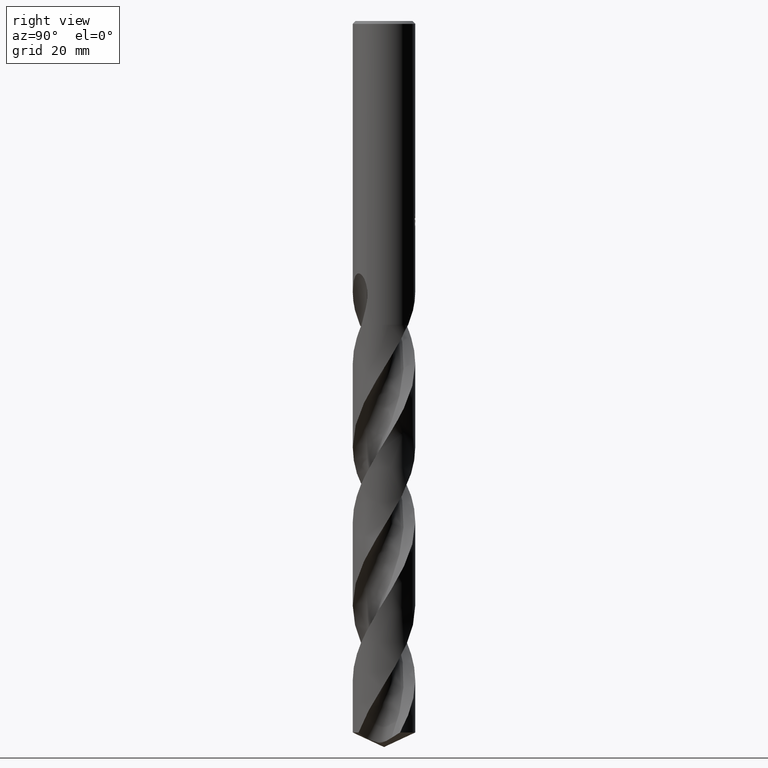
[diagram: clean part render]
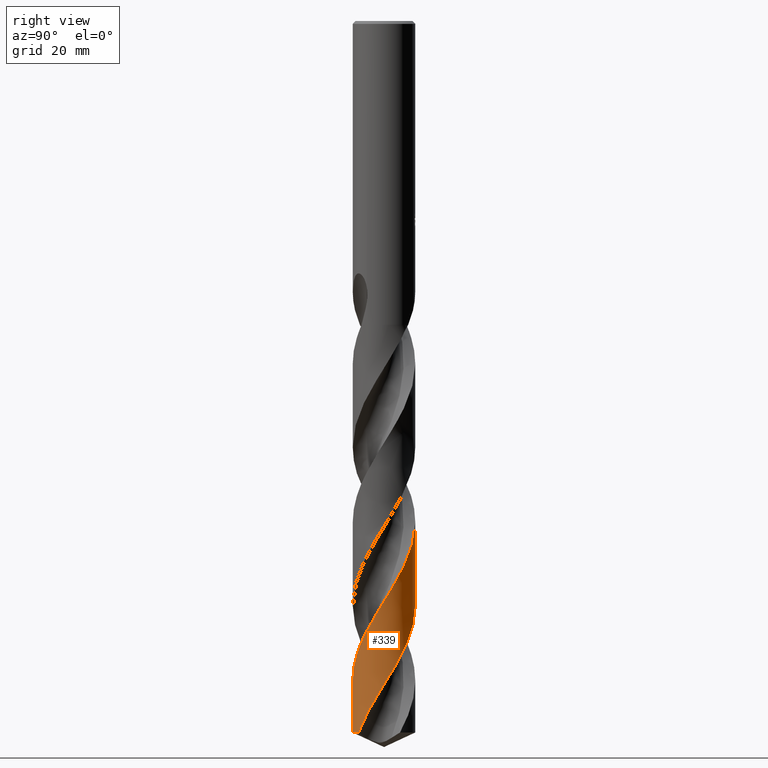
[diagram: same view with one face highlighted and labeled with its STEP entity id]
A machine part, right view. The second image highlights one B-rep face of the part: STEP entity #339.
In plain terms, the highlighted conical surface has half-angle 0 deg.
Its self-contained STEP definition (entity closure, byte-faithful):
#339=ADVANCED_FACE('',(#823),#824,.T.);
#349=EDGE_CURVE('',#655,#509,#835,.T.);
#411=EDGE_CURVE('',#699,#669,#900,.T.);
#509=VERTEX_POINT('',#1010);
#529=EDGE_CURVE('',#655,#669,#1032,.T.);
#531=EDGE_CURVE('',#537,#509,#1034,.T.);
#537=VERTEX_POINT('',#1040);
#559=EDGE_CURVE('',#537,#699,#1062,.T.);
#655=VERTEX_POINT('',#1168);
#669=VERTEX_POINT('',#1183);
#699=VERTEX_POINT('',#1215);
#823=FACE_OUTER_BOUND('',#1927,.T.);
#824=CONICAL_SURFACE('',#1928,6.49995,1.17967652960211E-006);
#835=LINE('',#2092,#2093);
#900=LINE('',#4105,#4106);
#1010=CARTESIAN_POINT('',(1.29228984185454E-014,6.49996885319632,-121.566166142724));
#1032=B_SPLINE_CURVE_WITH_KNOTS('',3,(#5838,#5839,#5840,#5841,#5842,#5843,#5844,#5845,#5846,#5847,#5848,#5849,#5850,#5851,#5852,#5853,#5854,#5855,#5856,#5857,#5858,#5859,#5860,#5861,#5862,#5863,#5864,#5865,#5866,#5867,#5868,#5869,#5870,#5871,#5872,#5873,#5874,#5875,#5876,#5877,#5878,#5879,#5880,#5881,#5882,#5883,#5884,#5885,#5886,#5887,#5888,#5889,#5890,#5891,#5892,#5893,#5894,#5895,#5896,#5897,#5898,#5899,#5900,#5901,#5902,#5903,#5904,#5905,#5906,#5907,#5908,#5909,#5910,#5911,#5912,#5913,#5914,#5915,#5916,#5917,#5918,#5919,#5920,#5921,#5922,#5923,#5924,#5925,#5926,#5927,#5928,#5929,#5930,#5931,#5932,#5933,#5934,#5935,#5936,#5937,#5938,#5939,#5940,#5941,#5942,#5943,#5944,#5945,#5946,#5947,#5948,#5949,#5950,#5951,#5952,#5953,#5954,#5955,#5956,#5957,#5958,#5959,#5960,#5961,#5962,#5963,#5964,#5965,#5966,#5967,#5968,#5969,#5970,#5971,#5972,#5973,#5974,#5975,#5976,#5977,#5978,#5979,#5980,#5981,#5982,#5983,#5984,#5985,#5986,#5987,#5988,#5989),.UNSPECIFIED.,.F.,.F.,(4,2,2,2,2,2,2,2,2,2,2,2,2,2,2,2,2,2,2,2,2,2,2,2,2,2,2,2,2,2,2,2,2,2,2,2,2,2,2,2,2,2,2,2,2,2,2,2,2,2,2,2,2,2,2,2,2,2,2,2,2,2,2,2,2,2,2,2,2,2,2,2,2,2,2,4),(0.0,0.3307925086736,0.473888265157433,0.52512629964502,0.560457225963903,0.621862463233159,1.41913168015053,1.65246397846595,1.79168776002357,1.91557137974385,2.07175984315985,2.38634997119177,2.44822355523765,3.37165144533369,3.90930528654019,4.39123339969616,4.63767424028621,5.24841387285559,6.83965311773962,9.14841746509517,11.3629098835279,13.5816164490376,15.7767259159485,15.9731011873861,17.5408142781743,19.7699929436128,21.9632010869519,22.3835700255137,24.0166476760406,26.2427579856608,28.4443587306659,28.5385548169038,31.4055500516683,31.8349769998907,33.4418826717555,35.6688278524919,37.8680056710739,38.0612859564526,41.0267214663211,41.222575721784,44.2258913980158,44.3209201483288,47.2289635120674,47.6408584377628,49.2552715744945,51.4806648887031,53.6798648195001,53.7755663756836,56.6604859081455,57.0814325433631,58.6654123026778,60.8916862848195,63.0879964492822,63.2855419634287,66.2566172763016,66.4511795422095,69.3924080326355,69.5920199332261,72.5349898493644,72.9333096813411,75.2384508161538,76.327419828701,78.3979423219118,79.4895163742067,81.6101539629526,82.5884760301213,84.431084584945,85.2476467011233,85.341190891026,88.2386840459353,88.8127686645703,90.9801678138458,92.6122823869317,93.8404367791828,95.683408709614,97.5285878149215),.UNSPECIFIED.);
#1034=B_SPLINE_CURVE_WITH_KNOTS('',3,(#5992,#5993,#5994,#5995,#5996,#5997,#5998,#5999,#6000,#6001,#6002,#6003,#6004,#6005,#6006,#6007,#6008,#6009,#6010,#6011,#6012,#6013,#6014,#6015,#6016,#6017,#6018,#6019,#6020,#6021,#6022,#6023,#6024,#6025,#6026,#6027,#6028,#6029,#6030,#6031,#6032,#6033,#6034,#6035,#6036,#6037,#6038,#6039,#6040,#6041,#6042,#6043,#6044,#6045,#6046,#6047,#6048,#6049,#6050,#6051,#6052,#6053,#6054,#6055,#6056,#6057,#6058,#6059,#6060,#6061,#6062,#6063,#6064,#6065,#6066,#6067,#6068,#6069,#6070,#6071,#6072,#6073,#6074,#6075,#6076,#6077,#6078,#6079,#6080,#6081,#6082,#6083,#6084,#6085,#6086,#6087,#6088,#6089,#6090,#6091,#6092,#6093,#6094,#6095,#6096,#6097,#6098,#6099,#6100,#6101,#6102,#6103,#6104,#6105,#6106,#6107,#6108,#6109,#6110,#6111,#6112,#6113,#6114,#6115,#6116,#6117,#6118,#6119,#6120,#6121,#6122,#6123,#6124,#6125,#6126,#6127,#6128,#6129,#6130,#6131,#6132,#6133,#6134,#6135,#6136,#6137,#6138,#6139,#6140,#6141,#6142,#6143),.UNSPECIFIED.,.F.,.F.,(4,2,2,2,2,2,2,2,2,2,2,2,2,2,2,2,2,2,2,2,2,2,2,2,2,2,2,2,2,2,2,2,2,2,2,2,2,2,2,2,2,2,2,2,2,2,2,2,2,2,2,2,2,2,2,2,2,2,2,2,2,2,2,2,2,2,2,2,2,2,2,2,2,2,2,4),(0.0,1.62132418654459,2.4100755511155,3.53007470213879,4.8874172246637,6.90391206648682,8.46617722255613,10.7296530012321,12.3443935304518,13.1133931842986,14.5625421738797,16.4256732524815,18.1229010113774,20.3864765735893,21.5230205791796,23.1300430384082,25.0368657537741,25.9830042574826,27.3672693458046,28.2037721064526,29.3313572113168,30.9495387823506,33.2150024813082,34.3514043604883,34.9183703551345,35.3575499269844,37.7527816875202,38.883780008069,40.3165175405839,41.1494591556516,42.2776073628225,43.8892269676371,46.157212882933,47.2947665947574,48.4286441379486,50.0402399478208,50.8488032586185,51.9778778376585,53.5844781159609,55.8545016287009,56.993029720212,58.1279442725644,60.845453854133,61.2468917153258,62.8590043281251,63.6686043569373,65.2789227949024,66.8961206625415,68.506265388891,70.1232150496392,71.7330096834696,73.3495544242167,74.959703675584,76.8218143176444,77.638802644601,79.1008983519036,80.0073995981991,80.9395037562613,82.544794752983,84.2661821766059,85.6118061203083,86.5219126319452,87.2041091973158,90.4073933633489,91.1099271508483,94.8423360437554,95.337679169389,96.0950887211978,97.0370158342632,97.5811545426173,98.1284872959159,98.5456601388065,98.9998819145481,99.7341514212595,100.625105436267,103.033967591384),.UNSPECIFIED.);
#1040=CARTESIAN_POINT('',(3.79022490556991,-5.2805487560667,-147.969000221993));
#1062=CIRCLE('',#6191,6.5);
#1168=CARTESIAN_POINT('',(-2.60542210125137E-010,6.49994837954793,-104.210859086015));
#1183=CARTESIAN_POINT('',(-2.71241090510634E-015,-6.49998722764595,-137.142003409667));
#1215=CARTESIAN_POINT('',(7.92428691798793E-016,-6.5,-147.969000221993));
#1927=EDGE_LOOP('',(#7198,#7199,#7200,#7201,#7202));
#1928=AXIS2_PLACEMENT_3D('',#7203,#7204,#7205);
#2092=CARTESIAN_POINT('',(-7.99553445138528E-016,6.49995,-105.584500110996));
#2093=VECTOR('',#7214,1.0);
#4105=CARTESIAN_POINT('',(7.92422568767024E-016,-6.49995,-105.584500110996));
#4106=VECTOR('',#7257,1.0);
#5838=CARTESIAN_POINT('',(4.51793200972925,-4.67300657415989,-63.205));
#5839=CARTESIAN_POINT('',(4.47820924897066,-4.71141128452638,-63.3004220497981));
#5840=CARTESIAN_POINT('',(4.43786501798241,-4.74943903421439,-63.395871840925));
#5841=CARTESIAN_POINT('',(4.37898668502227,-4.80351573854517,-63.5324762783329));
#5842=CARTESIAN_POINT('',(4.36108142932011,-4.81977835762852,-63.5736751074047));
#5843=CARTESIAN_POINT('',(4.33656123180423,-4.84179912704464,-63.6295977257568));
#5844=CARTESIAN_POINT('',(4.33007853964765,-4.84759759888259,-63.6443361666792));
#5845=CARTESIAN_POINT('',(4.31909384415149,-4.85738320701065,-63.6692300336972));
#5846=CARTESIAN_POINT('',(4.31460210257784,-4.86137349027631,-63.6793869405916));
#5847=CARTESIAN_POINT('',(4.3022790374305,-4.87229022949103,-63.7071903100001));
#5848=CARTESIAN_POINT('',(4.29443076978171,-4.87920917810052,-63.7248293018094));
#5849=CARTESIAN_POINT('',(4.18429094325429,-4.9758343846541,-63.9713982085249));
#5850=CARTESIAN_POINT('',(4.07951402421442,-5.06221528999458,-64.1941356308327));
#5851=CARTESIAN_POINT('',(3.93565935700697,-5.17310314895505,-64.4854356778614));
#5852=CARTESIAN_POINT('',(3.90276363994015,-5.19796824199523,-64.5511547269796));
#5853=CARTESIAN_POINT('',(3.84960149107228,-5.23735639814778,-64.6560971073162));
#5854=CARTESIAN_POINT('',(3.82961953525145,-5.25198561659807,-64.6952634218363));
#5855=CARTESIAN_POINT('',(3.79162310028929,-5.27947022759999,-64.7692639296757));
#5856=CARTESIAN_POINT('',(3.77364715483172,-5.29233423596439,-64.804075198569));
#5857=CARTESIAN_POINT('',(3.73280582046635,-5.32124658740427,-64.8827659202167));
#5858=CARTESIAN_POINT('',(3.70990700935733,-5.33723693039916,-64.9266057547497));
#5859=CARTESIAN_POINT('',(3.64050816329715,-5.38503478248321,-65.0587645381977));
#5860=CARTESIAN_POINT('',(3.59375797935913,-5.41634534788773,-65.1468459409376));
#5861=CARTESIAN_POINT('',(3.5373535651952,-5.45307102592216,-65.25249222164));
#5862=CARTESIAN_POINT('',(3.52797518622963,-5.45914376161064,-65.2700386206396));
#5863=CARTESIAN_POINT('',(3.37662571176455,-5.55658114928877,-65.5531810193184));
#5864=CARTESIAN_POINT('',(3.23236839242743,-5.64163331445941,-65.8215750020553));
#5865=CARTESIAN_POINT('',(3.0014872258767,-5.76620679572974,-66.2450323042523));
#5866=CARTESIAN_POINT('',(2.91563835839225,-5.81008313998903,-66.401216494796));
#5867=CARTESIAN_POINT('',(2.75130928509666,-5.88952409322988,-66.6971571251531));
#5868=CARTESIAN_POINT('',(2.67286459339836,-5.92553832995529,-66.8371622986441));
#5869=CARTESIAN_POINT('',(2.55321876724193,-5.97760671912352,-67.0485554473706));
#5870=CARTESIAN_POINT('',(2.51253290729255,-5.99482216252276,-67.1200735698436));
#5871=CARTESIAN_POINT('',(2.37032162427453,-6.05329180438031,-67.3687309654699));
#5872=CARTESIAN_POINT('',(2.26787942017028,-6.09241645448442,-67.5455158869196));
#5873=CARTESIAN_POINT('',(1.8947095651999,-6.22419807238178,-68.1833856405298));
#5874=CARTESIAN_POINT('',(1.61904217308146,-6.30153323467799,-68.6429752430478));
#5875=CARTESIAN_POINT('',(0.932951641740978,-6.44598165134934,-69.7730202838606));
#5876=CARTESIAN_POINT('',(0.519642564463987,-6.49237235541922,-70.4421271241467));
#5877=CARTESIAN_POINT('',(-0.293049300043514,-6.50548235017032,-71.7528559868552));
#5878=CARTESIAN_POINT('',(-0.690731642754225,-6.47535019680299,-72.393006006834));
#5879=CARTESIAN_POINT('',(-1.47641072174938,-6.3425629684567,-73.6778092914123));
#5880=CARTESIAN_POINT('',(-1.86257946468668,-6.24007603716064,-74.3192342096207));
#5881=CARTESIAN_POINT('',(-2.60710447668836,-5.96719494356367,-75.598662225617));
#5882=CARTESIAN_POINT('',(-2.96438835604369,-5.798020205657,-76.2335647919112));
#5883=CARTESIAN_POINT('',(-3.33463122632599,-5.57946157661528,-76.9265910798116));
#5884=CARTESIAN_POINT('',(-3.36488388690233,-5.56126909998587,-76.9834927245807));
#5885=CARTESIAN_POINT('',(-3.63531054699394,-5.39563330988201,-77.4947622898975));
#5886=CARTESIAN_POINT('',(-3.86577825478906,-5.23297927466746,-77.9489560808522));
#5887=CARTESIAN_POINT('',(-4.39657621304649,-4.80412041263533,-79.0495126929007));
#5888=CARTESIAN_POINT('',(-4.68423331635502,-4.52408719628187,-79.6937444451382));
#5889=CARTESIAN_POINT('',(-5.2000905096978,-3.91961077345935,-80.9757047598491));
#5890=CARTESIAN_POINT('',(-5.42819159656395,-3.59710822733367,-81.6102017776645));
#5891=CARTESIAN_POINT('',(-5.66355268376723,-3.19043514305934,-82.3676872872608));
#5892=CARTESIAN_POINT('',(-5.70025972983112,-3.12437903211955,-82.4894916012276));
#5893=CARTESIAN_POINT('',(-5.87389585674147,-2.79866419689929,-83.0847123982279));
#5894=CARTESIAN_POINT('',(-5.99427989635576,-2.53056976856241,-83.5578567465201));
#5895=CARTESIAN_POINT('',(-6.23496051534933,-1.87999984361452,-84.6765576098914));
#5896=CARTESIAN_POINT('',(-6.33883248424943,-1.49274493459045,-85.3200181060971));
#5897=CARTESIAN_POINT('',(-6.47330323287893,-0.708480648774603,-86.603611379532));
#5898=CARTESIAN_POINT('',(-6.50443692001382,-0.313136616798833,-87.240436239393));
#5899=CARTESIAN_POINT('',(-6.49918805165718,0.0996011221925565,-87.9058637089589));
#5900=CARTESIAN_POINT('',(-6.49890652464753,0.116533664691075,-87.9331649042001));
#5901=CARTESIAN_POINT('',(-6.48797588817257,0.648806333799623,-88.791517030174));
#5902=CARTESIAN_POINT('',(-6.41612222518547,1.16113940937069,-89.6205695191429));
#5903=CARTESIAN_POINT('',(-6.2647838259668,1.73423350449911,-90.5761472278465));
#5904=CARTESIAN_POINT('',(-6.24374256713683,1.80852454197891,-90.7005978036831));
#5905=CARTESIAN_POINT('',(-6.13771802878759,2.15893716177716,-91.2909660089431));
#5906=CARTESIAN_POINT('',(-6.03571043077398,2.4295655883382,-91.7566329615081));
#5907=CARTESIAN_POINT('',(-5.75021059469158,3.05687919045398,-92.8682028051437));
#5908=CARTESIAN_POINT('',(-5.55107770128575,3.40513259198542,-93.5119915911669));
#5909=CARTESIAN_POINT('',(-5.09419048979997,4.05643486150273,-94.7953617216551));
#5910=CARTESIAN_POINT('',(-4.83807890166644,4.3587369526267,-95.4316402640438));
#5911=CARTESIAN_POINT('',(-4.53122520061978,4.66030162053247,-96.1252150647542));
#5912=CARTESIAN_POINT('',(-4.506242613325,4.68446274246779,-96.1812416035125));
#5913=CARTESIAN_POINT('',(-4.09480879899903,5.07603115740376,-97.0970494409988));
#5914=CARTESIAN_POINT('',(-3.6647093144008,5.39477309678463,-97.9544057633027));
#5915=CARTESIAN_POINT('',(-3.16985755383787,5.67472385790286,-98.8709827553831));
#5916=CARTESIAN_POINT('',(-3.13906189184093,5.69181683472122,-98.9277627968335));
#5917=CARTESIAN_POINT('',(-2.6337831806818,5.96692143503334,-99.8554164279822));
#5918=CARTESIAN_POINT('',(-2.12900487270396,6.16509847716809,-100.723697250308));
#5919=CARTESIAN_POINT('',(-1.58897225717029,6.30275721965231,-101.622124842144));
#5920=CARTESIAN_POINT('',(-1.57239345486178,6.30691371688757,-101.649679046914));
#5921=CARTESIAN_POINT('',(-1.04794581841296,6.43620235300232,-102.52054509378));
#5922=CARTESIAN_POINT('',(-0.526753423103041,6.4996554771949,-103.361686507737));
#5923=CARTESIAN_POINT('',(0.0704830097925463,6.49998871112946,-104.324483863433));
#5924=CARTESIAN_POINT('',(0.144565522456777,6.4987630951164,-104.443907581966));
#5925=CARTESIAN_POINT('',(0.508814217308679,6.48650636471804,-105.031624880825));
#5926=CARTESIAN_POINT('',(0.79803846836092,6.45730512328821,-105.499663566479));
#5927=CARTESIAN_POINT('',(1.47895790797468,6.34210077642482,-106.613441274906));
#5928=CARTESIAN_POINT('',(1.86654454140258,6.23903222911686,-107.257078720273));
#5929=CARTESIAN_POINT('',(2.61334031201148,5.96458182005419,-108.540569389162));
#5930=CARTESIAN_POINT('',(2.97139470665254,5.79454541719797,-109.177118540243));
#5931=CARTESIAN_POINT('',(3.32665019264916,5.5841839363393,-109.842699574674));
#5932=CARTESIAN_POINT('',(3.34142922469194,5.57535316319686,-109.870453787804));
#5933=CARTESIAN_POINT('',(3.80064467432505,5.29848074432978,-110.734977817713));
#5934=CARTESIAN_POINT('',(4.2114863723845,4.9781796509563,-111.569670211352));
#5935=CARTESIAN_POINT('',(4.63358114197008,4.55906997046529,-112.528580482109));
#5936=CARTESIAN_POINT('',(4.68638427013971,4.50477476501117,-112.650649908559));
#5937=CARTESIAN_POINT('',(4.93329541376285,4.2418469634813,-113.232276379595));
#5938=CARTESIAN_POINT('',(5.11448452849296,4.02153071777952,-113.691590813297));
#5939=CARTESIAN_POINT('',(5.51413718111069,3.46470204493466,-114.797023461141));
#5940=CARTESIAN_POINT('',(5.71706204210762,3.11849818215417,-115.441010507953));
#5941=CARTESIAN_POINT('',(6.05431071624156,2.39810008299178,-116.724171884073));
#5942=CARTESIAN_POINT('',(6.18887208600335,2.02573044684773,-117.360054329298));
#5943=CARTESIAN_POINT('',(6.29777943513175,1.60896830454242,-118.05447462043));
#5944=CARTESIAN_POINT('',(6.30648372553941,1.57450581409119,-118.111772905812));
#5945=CARTESIAN_POINT('',(6.44156118509222,1.0206037726415,-119.031021270707));
#5946=CARTESIAN_POINT('',(6.50367621620951,0.487499765217495,-119.890515166389));
#5947=CARTESIAN_POINT('',(6.49954265610857,-0.0821872291413206,-120.808921823072));
#5948=CARTESIAN_POINT('',(6.49900573369818,-0.117194900050577,-120.865361538861));
#5949=CARTESIAN_POINT('',(6.48579390984548,-0.681330907817463,-121.775199889463));
#5950=CARTESIAN_POINT('',(6.40881023174999,-1.20706230622049,-122.626269415762));
#5951=CARTESIAN_POINT('',(6.25943037102969,-1.75226924317336,-123.537601292201));
#5952=CARTESIAN_POINT('',(6.24965035186362,-1.78683722797868,-123.595512860559));
#5953=CARTESIAN_POINT('',(6.09117334007038,-2.32975999917139,-124.507427974051));
#5954=CARTESIAN_POINT('',(5.88114051663456,-2.81824071475319,-125.359097449239));
#5955=CARTESIAN_POINT('',(5.57802465813357,-3.33773126488623,-126.328699662233));
#5956=CARTESIAN_POINT('',(5.54087289280444,-3.39904930903777,-126.444270070367));
#5957=CARTESIAN_POINT('',(5.28190522869131,-3.81093966180679,-127.228888319464));
#5958=CARTESIAN_POINT('',(5.02794008455831,-4.14025351729254,-127.896849938268));
#5959=CARTESIAN_POINT('',(4.61029575239043,-4.5862084214204,-128.881875013936));
#5960=CARTESIAN_POINT('',(4.46992026574586,-4.7231268938198,-129.197627758952));
#5961=CARTESIAN_POINT('',(4.04537593808972,-5.10132258163486,-130.114713886732));
#5962=CARTESIAN_POINT('',(3.74630720997537,-5.3248330844721,-130.714853636175));
#5963=CARTESIAN_POINT('',(3.26276145287521,-5.62518896437738,-131.632600670585));
#5964=CARTESIAN_POINT('',(3.09125334666908,-5.7212321274801,-131.949130226147));
#5965=CARTESIAN_POINT('',(2.57459515565924,-5.98054138600328,-132.881568878427));
#5966=CARTESIAN_POINT('',(2.21902140665627,-6.12139532775112,-133.496188659746));
#5967=CARTESIAN_POINT('',(1.6842614083802,-6.28045197660755,-134.395645741418));
#5968=CARTESIAN_POINT('',(1.51350011439615,-6.32377395348091,-134.679383627794));
#5969=CARTESIAN_POINT('',(1.01671656038756,-6.42853605127012,-135.498271519149));
#5970=CARTESIAN_POINT('',(0.687411788540095,-6.47204145043602,-136.032619839042));
#5971=CARTESIAN_POINT('',(0.209406744976786,-6.49827574965437,-136.804494101223));
#5972=CARTESIAN_POINT('',(0.0623845416831953,-6.50135029701063,-137.041416740521));
#5973=CARTESIAN_POINT('',(-0.101464802910729,-6.49921726296084,-137.305579762468));
#5974=CARTESIAN_POINT('',(-0.118303946411319,-6.49893258046082,-137.332731168143));
#5975=CARTESIAN_POINT('',(-0.656676726485192,-6.48773785775636,-138.200934860674));
#5976=CARTESIAN_POINT('',(-1.17509756649081,-6.41414189530373,-139.039839348915));
#5977=CARTESIAN_POINT('',(-1.77898738128828,-6.25266089083766,-140.047569709296));
#5978=CARTESIAN_POINT('',(-1.87818063801055,-6.22358399545966,-140.214174243904));
#5979=CARTESIAN_POINT('',(-2.34830027630114,-6.07351598368544,-141.010108504313));
#5980=CARTESIAN_POINT('',(-2.70860020958614,-5.92162916179243,-141.638475513266));
#5981=CARTESIAN_POINT('',(-3.31257267567705,-5.60028093669192,-142.741517300365));
#5982=CARTESIAN_POINT('',(-3.56231928760205,-5.44482545444835,-143.214764917166));
#5983=CARTESIAN_POINT('',(-3.98000539292788,-5.14377029465875,-144.045230841425));
#5984=CARTESIAN_POINT('',(-4.15267288633789,-5.00541343741301,-144.401588779132));
#5985=CARTESIAN_POINT('',(-4.56603947778509,-4.63803617074151,-145.293156509395));
#5986=CARTESIAN_POINT('',(-4.79676473923554,-4.39897798310711,-145.827117073325));
#5987=CARTESIAN_POINT('',(-5.21984241821379,-3.88760651658906,-146.898123983335));
#5988=CARTESIAN_POINT('',(-5.41166073937333,-3.6158421685466,-147.433295834332));
#5989=CARTESIAN_POINT('',(-5.5819054693998,-3.33051517496688,-147.969000221993));
#5992=CARTESIAN_POINT('',(3.79022490556991,-5.28054875606669,-147.969000221993));
#5993=CARTESIAN_POINT('',(4.02174585212807,-5.1143690616076,-147.509806077387));
#5994=CARTESIAN_POINT('',(4.24215853302036,-4.93309285762797,-147.05211763448));
#5995=CARTESIAN_POINT('',(4.55115171643944,-4.64286994851133,-146.369768579384));
#5996=CARTESIAN_POINT('',(4.64911371525889,-4.54476493688278,-146.146552995412));
#5997=CARTESIAN_POINT('',(4.87820239156214,-4.30020545615089,-145.60574394867));
#5998=CARTESIAN_POINT('',(5.00593662846611,-4.15080934694752,-145.287659463847));
#5999=CARTESIAN_POINT('',(5.27328984897797,-3.80777426920662,-144.585654854913));
#6000=CARTESIAN_POINT('',(5.40942078879069,-3.61179219254936,-144.201931161531));
#6001=CARTESIAN_POINT('',(5.7204383151178,-3.10679415105454,-143.246429305238));
#6002=CARTESIAN_POINT('',(5.88126099012771,-2.79037955617215,-142.674392189733));
#6003=CARTESIAN_POINT('',(6.11947558027587,-2.20845384557067,-141.660692884338));
#6004=CARTESIAN_POINT('',(6.20727699087743,-1.94807169377468,-141.219458000309));
#6005=CARTESIAN_POINT('',(6.38134240662354,-1.2986804198297,-140.135948025566));
#6006=CARTESIAN_POINT('',(6.44884622760007,-0.90585737467196,-139.493759702359));
#6007=CARTESIAN_POINT('',(6.50225081815129,-0.226192721347483,-138.395543390879));
#6008=CARTESIAN_POINT('',(6.50590368104253,0.0576767322040304,-137.939580591238));
#6009=CARTESIAN_POINT('',(6.48398796520858,0.475331181093307,-137.264081222246));
#6010=CARTESIAN_POINT('',(6.47271556764535,0.609959362755501,-137.045671306393));
#6011=CARTESIAN_POINT('',(6.42808152444466,0.997222327657081,-136.416625054026));
#6012=CARTESIAN_POINT('',(6.38406066854726,1.2484418871952,-136.006736130524));
#6013=CARTESIAN_POINT('',(6.24986651342737,1.8156122354089,-135.067909939627));
#6014=CARTESIAN_POINT('',(6.15039952595044,2.12827898764634,-134.538859447583));
#6015=CARTESIAN_POINT('',(5.91631815296673,2.7084884854754,-133.529618345448));
#6016=CARTESIAN_POINT('',(5.78579610670393,2.97714648325462,-133.050186337054));
#6017=CARTESIAN_POINT('',(5.43906344559904,3.58116853729023,-131.927814111104));
#6018=CARTESIAN_POINT('',(5.20964799265869,3.90740687787636,-131.285280528893));
#6019=CARTESIAN_POINT('',(4.82222875499959,4.36300379570429,-130.32191959364));
#6020=CARTESIAN_POINT('',(4.68581334966849,4.50918916296377,-130.000360646068));
#6021=CARTESIAN_POINT('',(4.34091046033446,4.84623546464316,-129.222834673283));
#6022=CARTESIAN_POINT('',(4.1263280721427,5.03020088954685,-128.766333084214));
#6023=CARTESIAN_POINT('',(3.63221453172022,5.40083862867883,-127.770507775109));
#6024=CARTESIAN_POINT('',(3.34900546405521,5.58086349526643,-127.232369529739));
#6025=CARTESIAN_POINT('',(2.90658715064165,5.81627395135536,-126.42369943569));
#6026=CARTESIAN_POINT('',(2.75702461977471,5.88864163539687,-126.155065959556));
#6027=CARTESIAN_POINT('',(2.38198849391812,6.05267773693862,-125.49450401753));
#6028=CARTESIAN_POINT('',(2.15378045365767,6.13760222283787,-125.103075230882));
#6029=CARTESIAN_POINT('',(1.7806204012414,6.25305355167595,-124.473954869588));
#6030=CARTESIAN_POINT('',(1.63870815198192,6.29173014763902,-124.237133772763));
#6031=CARTESIAN_POINT('',(1.30291408617468,6.37112896135147,-123.680475346223));
#6032=CARTESIAN_POINT('',(1.10826018347346,6.40785706258063,-123.360279118044));
#6033=CARTESIAN_POINT('',(0.630602619477846,6.47555291914232,-122.582042513852));
#6034=CARTESIAN_POINT('',(0.346693480307367,6.49695009044581,-122.124858083724));
#6035=CARTESIAN_POINT('',(-0.336131517117622,6.50348152650154,-121.024510971709));
#6036=CARTESIAN_POINT('',(-0.733865569570483,6.47068233498283,-120.381396499023));
#6037=CARTESIAN_POINT('',(-1.32304202216333,6.36702892927826,-119.417619312883));
#6038=CARTESIAN_POINT('',(-1.51811996720966,6.32335143799065,-119.096139009076));
#6039=CARTESIAN_POINT('',(-1.80698623864051,6.24454028208355,-118.613498312968));
#6040=CARTESIAN_POINT('',(-1.90245538154534,6.21611753502782,-118.452875694888));
#6041=CARTESIAN_POINT('',(-2.07053941301797,6.1618466044524,-118.167643297466));
#6042=CARTESIAN_POINT('',(-2.14341632736361,6.13687565032569,-118.043066338268));
#6043=CARTESIAN_POINT('',(-2.61084269924181,5.96737559388971,-117.23984292384));
#6044=CARTESIAN_POINT('',(-2.99120678416381,5.78611583006668,-116.565709819431));
#6045=CARTESIAN_POINT('',(-3.52179088275527,5.46680362702204,-115.567127567304));
#6046=CARTESIAN_POINT('',(-3.68704888771486,5.3567288744131,-115.24620592009));
#6047=CARTESIAN_POINT('',(-4.04961355604011,5.0905113011691,-114.520297503809));
#6048=CARTESIAN_POINT('',(-4.24356039185814,4.93001355050386,-114.115666316088));
#6049=CARTESIAN_POINT('',(-4.53496333099837,4.65886170855728,-113.474522661452));
#6050=CARTESIAN_POINT('',(-4.63862875176556,4.55565037449691,-113.238961804812));
#6051=CARTESIAN_POINT('',(-4.87415585074176,4.30479344112068,-112.683742202908));
#6052=CARTESIAN_POINT('',(-5.00294313363584,4.15442200272777,-112.363676478609));
#6053=CARTESIAN_POINT('',(-5.29874466344104,3.77528300395259,-111.587926064542));
#6054=CARTESIAN_POINT('',(-5.45806092769967,3.54106495214607,-111.133043234508));
#6055=CARTESIAN_POINT('',(-5.80372732968601,2.95378869657125,-110.034959828966));
#6056=CARTESIAN_POINT('',(-5.97379001330668,2.59268343168818,-109.391858666668));
#6057=CARTESIAN_POINT('',(-6.17796492925506,2.0302916356101,-108.428044074425));
#6058=CARTESIAN_POINT('',(-6.23744999616913,1.83943206565108,-108.10656895449));
#6059=CARTESIAN_POINT('',(-6.33846865287108,1.45356133700237,-107.463620428793));
#6060=CARTESIAN_POINT('',(-6.37997573662332,1.25887401775883,-107.142081088634));
#6061=CARTESIAN_POINT('',(-6.4586438844605,0.78424269934137,-106.365271972373));
#6062=CARTESIAN_POINT('',(-6.48665293453493,0.502702070286462,-105.910749948739));
#6063=CARTESIAN_POINT('',(-6.50102924031919,0.0781411531529518,-105.226486794685));
#6064=CARTESIAN_POINT('',(-6.50118229123228,-0.0637331301644713,-104.998007949832));
#6065=CARTESIAN_POINT('',(-6.49044717980099,-0.403244354502667,-104.449906537911));
#6066=CARTESIAN_POINT('',(-6.47516618985474,-0.600629306382358,-104.129855357329));
#6067=CARTESIAN_POINT('',(-6.41633023126337,-1.07675551734068,-103.35593541402));
#6068=CARTESIAN_POINT('',(-6.36362237705969,-1.35392711474945,-102.902851459008));
#6069=CARTESIAN_POINT('',(-6.19333413444553,-2.01261428690001,-101.806562090266));
#6070=CARTESIAN_POINT('',(-6.05839911518935,-2.38827504580108,-101.163437307259));
#6071=CARTESIAN_POINT('',(-5.80532266156321,-2.93043279706328,-100.199602612055));
#6072=CARTESIAN_POINT('',(-5.71250121287554,-3.10749033781904,-99.8781301330791));
#6073=CARTESIAN_POINT('',(-5.51121836326225,-3.45186553937985,-99.2351698408475));
#6074=CARTESIAN_POINT('',(-5.40296603428133,-3.61893465602253,-98.9136175562162));
#6075=CARTESIAN_POINT('',(-5.01066355700202,-4.167595407418,-97.8245593450723));
#6076=CARTESIAN_POINT('',(-4.69238587213453,-4.52292462915633,-97.062957056636));
#6077=CARTESIAN_POINT('',(-4.2859768254325,-4.88718146672644,-96.1813197394064));
#6078=CARTESIAN_POINT('',(-4.23295519385713,-4.93317624804271,-96.0677936885373));
#6079=CARTESIAN_POINT('',(-3.96312044028184,-5.1596932575907,-95.4986188244955));
#6080=CARTESIAN_POINT('',(-3.73528888577669,-5.32697917279083,-95.044393394849));
#6081=CARTESIAN_POINT('',(-3.37735508715361,-5.55542995330289,-94.3604694276664));
#6082=CARTESIAN_POINT('',(-3.25528166035819,-5.62782627485006,-94.1319690338413));
#6083=CARTESIAN_POINT('',(-2.88379811764713,-5.83201883830109,-93.4483024883423));
#6084=CARTESIAN_POINT('',(-2.62799053836725,-5.95168121521361,-92.9923214687668));
#6085=CARTESIAN_POINT('',(-2.10098948738972,-6.15754456414058,-92.0804747316052));
#6086=CARTESIAN_POINT('',(-1.83052214085557,-6.24328535240842,-91.6249433559299));
#6087=CARTESIAN_POINT('',(-1.28148567810336,-6.37859741468236,-90.7130217989866));
#6088=CARTESIAN_POINT('',(-1.00345626587126,-6.42820954646601,-90.2570141097964));
#6089=CARTESIAN_POINT('',(-0.441193716214307,-6.49113330315896,-89.3451425201699));
#6090=CARTESIAN_POINT('',(-0.157775463792883,-6.5041893707928,-88.8896091776083));
#6091=CARTESIAN_POINT('',(0.407534532919779,-6.4932707623202,-87.9777073191428));
#6092=CARTESIAN_POINT('',(0.688906260734173,-6.46947805200624,-87.5216944790068));
#6093=CARTESIAN_POINT('',(1.2482814483397,-6.38523194879233,-86.6098861111665));
#6094=CARTESIAN_POINT('',(1.52544536543831,-6.32474034590971,-86.1543984930463));
#6095=CARTESIAN_POINT('',(2.06891055259113,-6.16832921029506,-85.2424094839436));
#6096=CARTESIAN_POINT('',(2.33472550130829,-6.07271063794224,-84.7862756878486));
#6097=CARTESIAN_POINT('',(2.89305214266629,-5.82974235559673,-83.8048704045834));
#6098=CARTESIAN_POINT('',(3.18208761240245,-5.67712453435834,-83.2806246159991));
#6099=CARTESIAN_POINT('',(3.57948311437024,-5.42741022023788,-82.5231682443928));
#6100=CARTESIAN_POINT('',(3.6980309147334,-5.3473390056596,-82.2918441082512));
#6101=CARTESIAN_POINT('',(4.02125589808459,-5.11312599920938,-81.6475153780614));
#6102=CARTESIAN_POINT('',(4.21970523954562,-4.95064029380449,-81.2352690114));
#6103=CARTESIAN_POINT('',(4.52503257935222,-4.66886822633646,-80.5660759079003));
#6104=CARTESIAN_POINT('',(4.63781070572123,-4.55685081639118,-80.3101585445132));
#6105=CARTESIAN_POINT('',(4.85785619290729,-4.32167180512834,-79.7904317416266));
#6106=CARTESIAN_POINT('',(4.96479981407926,-4.19837567849572,-79.5265039549913));
#6107=CARTESIAN_POINT('',(5.24311589537325,-3.85197429384565,-78.8092741350848));
#6108=CARTESIAN_POINT('',(5.40489941928448,-3.62149594190509,-78.3569342246989));
#6109=CARTESIAN_POINT('',(5.70833809438587,-3.12328480946458,-77.4171566724251));
#6110=CARTESIAN_POINT('',(5.84710662994081,-2.85501663643671,-76.9299415411014));
#6111=CARTESIAN_POINT('',(6.06014652745422,-2.36200049621374,-76.0635126647966));
#6112=CARTESIAN_POINT('',(6.14183478478099,-2.14065573529553,-75.6842612674689));
#6113=CARTESIAN_POINT('',(6.25835626187333,-1.76275787266407,-75.0473294490087));
#6114=CARTESIAN_POINT('',(6.29970118775166,-1.60873177246363,-74.7905435345895));
#6115=CARTESIAN_POINT('',(6.36202199776963,-1.33708806325704,-74.340662336063));
#6116=CARTESIAN_POINT('',(6.38548434896122,-1.22011142674059,-74.147671259353));
#6117=CARTESIAN_POINT('',(6.50067325523901,-0.550907039699486,-73.0505100745719));
#6118=CARTESIAN_POINT('',(6.52401865383666,0.011186345790022,-72.1542238986479));
#6119=CARTESIAN_POINT('',(6.46414457258382,0.69192764929461,-71.0520479926941));
#6120=CARTESIAN_POINT('',(6.44990737497502,0.814003506296325,-70.8539508718142));
#6121=CARTESIAN_POINT('',(6.3382906082566,1.58138558524129,-69.6021696831641));
#6122=CARTESIAN_POINT('',(6.14692454330661,2.21520891125913,-68.5307120065436));
#6123=CARTESIAN_POINT('',(5.82037849863591,2.8947817081983,-67.3436238452029));
#6124=CARTESIAN_POINT('',(5.78050160698427,2.97367886066884,-67.205397446174));
#6125=CARTESIAN_POINT('',(5.67288815110542,3.17588972619156,-66.8420122334209));
#6126=CARTESIAN_POINT('',(5.60485784834314,3.2942976464098,-66.6219933258097));
#6127=CARTESIAN_POINT('',(5.44666304045961,3.55113539346638,-66.1235748705738));
#6128=CARTESIAN_POINT('',(5.35625239542064,3.68566617463311,-65.8473521098118));
#6129=CARTESIAN_POINT('',(5.2103910682235,3.8870099659222,-65.4047884114843));
#6130=CARTESIAN_POINT('',(5.17333683321162,3.93534270340363,-65.2918419974331));
#6131=CARTESIAN_POINT('',(5.12430459187549,3.99898178112046,-65.1461620416361));
#6132=CARTESIAN_POINT('',(5.09892551710065,4.03130898809893,-65.0736544676417));
#6133=CARTESIAN_POINT('',(5.05263794367969,4.08908325532004,-64.9466563400332));
#6134=CARTESIAN_POINT('',(5.03212574132081,4.11430770129643,-64.8920485072301));
#6135=CARTESIAN_POINT('',(4.98817585524256,4.16750761151669,-64.7785782374134));
#6136=CARTESIAN_POINT('',(4.96466321116715,4.19550052191598,-64.7198282573887));
#6137=CARTESIAN_POINT('',(4.9014521751828,4.26943782069398,-64.5670366148428));
#6138=CARTESIAN_POINT('',(4.86083295121104,4.31567139119179,-64.473858059976));
#6139=CARTESIAN_POINT('',(4.76691308645203,4.41940503369381,-64.2694946754413));
#6140=CARTESIAN_POINT('',(4.71295924161893,4.47697587758064,-64.1591547023316));
#6141=CARTESIAN_POINT('',(4.50329201230211,4.69224803445626,-63.7559544773164));
#6142=CARTESIAN_POINT('',(4.33261740522982,4.85163846765504,-63.4758799996187));
#6143=CARTESIAN_POINT('',(4.14185932743565,5.00936137630457,-63.205));
#6191=AXIS2_PLACEMENT_3D('',#7408,#7409,#7410);
#7198=ORIENTED_EDGE('',*,*,#349,.F.);
#7199=ORIENTED_EDGE('',*,*,#529,.T.);
#7200=ORIENTED_EDGE('',*,*,#411,.F.);
#7201=ORIENTED_EDGE('',*,*,#559,.F.);
#7202=ORIENTED_EDGE('',*,*,#531,.T.);
#7203=CARTESIAN_POINT('',(0.0,0.0,-105.584500110996));
#7204=DIRECTION('',(0.0,-0.0,-1.0));
#7205=DIRECTION('',(0.0,1.0,0.0));
#7214=DIRECTION('',(-1.44463937360554E-022,1.17967652960184E-006,-0.999999999999304));
#7257=DIRECTION('',(-1.44463937360554E-022,1.17967652960184E-006,0.999999999999304));
#7408=CARTESIAN_POINT('',(0.0,0.0,-147.969000221993));
#7409=DIRECTION('',(0.0,0.0,-1.0));
#7410=DIRECTION('',(0.0,1.0,0.0));